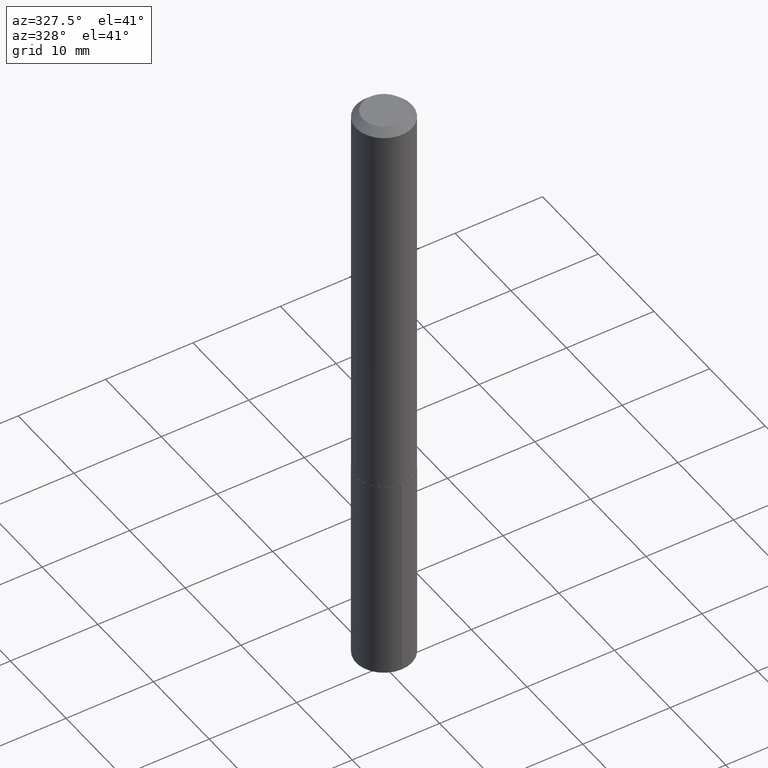
[diagram: clean part render]
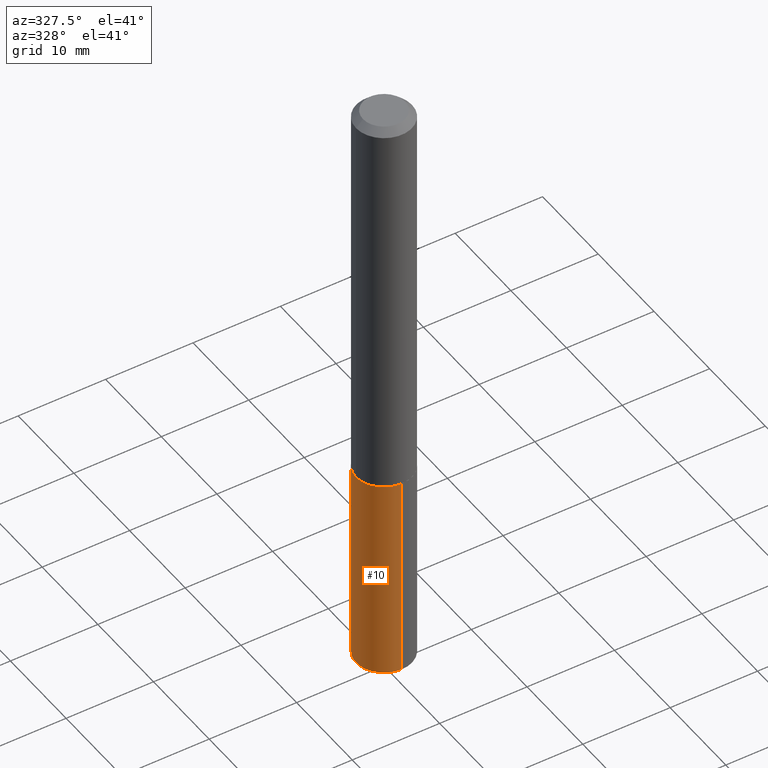
[diagram: same view with one face highlighted and labeled with its STEP entity id]
A machine part, auxiliary view. The second image highlights one B-rep face of the part: STEP entity #10.
In plain terms, the highlighted cylindrical surface (edge-blend (fillet) strip) has radius 3.2004 mm, axis along (-0, 0, 1).
Its self-contained STEP definition (entity closure, byte-faithful):
#10 = ADVANCED_FACE ( 'NONE', ( #75 ), #234, .T. ) ;
#20 = ORIENTED_EDGE ( 'NONE', *, *, #297, .F. ) ;
#22 = AXIS2_PLACEMENT_3D ( 'NONE', #199, #195, #235 ) ;
#57 = CARTESIAN_POINT ( 'NONE',  ( -8.798532973884258671E-16, -0.1260000000000062459, -1.787399999999999656 ) ) ;
#68 = CARTESIAN_POINT ( 'NONE',  ( -8.798532973884258671E-16, -0.1260000000000062459, -1.787399999999999656 ) ) ;
#75 = FACE_OUTER_BOUND ( 'NONE', #123, .T. ) ;
#88 = EDGE_CURVE ( 'NONE', #144, #357, #300, .T. ) ;
#97 = DIRECTION ( 'NONE',  ( -6.982962677686265922E-15, -1.000000000000000000, 4.336266656609941617E-15 ) ) ;
#107 = CARTESIAN_POINT ( 'NONE',  ( 8.952838470577930965E-16, 0.1259999999999937559, -1.787400000000000766 ) ) ;
#123 = EDGE_LOOP ( 'NONE', ( #20, #331, #306, #351 ) ) ;
#143 = VECTOR ( 'NONE', #327, 39.37007874015748143 ) ;
#144 = VERTEX_POINT ( 'NONE', #107 ) ;
#146 = DIRECTION ( 'NONE',  ( -2.445509556523788279E-29, 3.491422982038831617E-15, 1.000000000000000000 ) ) ;
#155 = EDGE_CURVE ( 'NONE', #213, #357, #173, .T. ) ;
#168 = VECTOR ( 'NONE', #146, 39.37007874015748143 ) ;
#173 = LINE ( 'NONE', #57, #143 ) ;
#177 = CIRCLE ( 'NONE', #222, 0.1260000000000000009 ) ;
#185 = LINE ( 'NONE', #241, #168 ) ;
#195 = DIRECTION ( 'NONE',  ( -2.445509556523788279E-29, 3.491422982038831222E-15, 1.000000000000000000 ) ) ;
#199 = CARTESIAN_POINT ( 'NONE',  ( 4.371030944175314115E-29, -6.240673745048238660E-15, -1.787400000000000100 ) ) ;
#202 = CARTESIAN_POINT ( 'NONE',  ( 4.371030944175314115E-29, -6.240673745048238660E-15, -1.787400000000000100 ) ) ;
#213 = VERTEX_POINT ( 'NONE', #384 ) ;
#222 = AXIS2_PLACEMENT_3D ( 'NONE', #245, #338, #97 ) ;
#234 = CYLINDRICAL_SURFACE ( 'NONE', #252, 0.1260000000000000009 ) ;
#235 = DIRECTION ( 'NONE',  ( -6.982962677686265922E-15, -1.000000000000000000, 4.336266656609941617E-15 ) ) ;
#241 = CARTESIAN_POINT ( 'NONE',  ( 8.952838470577698251E-16, 0.1259999999999937559, -1.787400000000000766 ) ) ;
#245 = CARTESIAN_POINT ( 'NONE',  ( 6.656942638513705697E-29, -9.504240883125278205E-15, -2.722138401753678494 ) ) ;
#252 = AXIS2_PLACEMENT_3D ( 'NONE', #202, #322, #380 ) ;
#277 = CARTESIAN_POINT ( 'NONE',  ( 8.952838470577932937E-16, 0.1259999999999905362, -2.722138401753679382 ) ) ;
#297 = EDGE_CURVE ( 'NONE', #368, #144, #185, .T. ) ;
#300 = CIRCLE ( 'NONE', #22, 0.1260000000000000009 ) ;
#306 = ORIENTED_EDGE ( 'NONE', *, *, #155, .T. ) ;
#322 = DIRECTION ( 'NONE',  ( -2.445509556523788279E-29, 3.491422982038831222E-15, 1.000000000000000000 ) ) ;
#327 = DIRECTION ( 'NONE',  ( -2.445509556523788279E-29, 3.491422982038831617E-15, 1.000000000000000000 ) ) ;
#328 = EDGE_CURVE ( 'NONE', #368, #213, #177, .T. ) ;
#331 = ORIENTED_EDGE ( 'NONE', *, *, #328, .T. ) ;
#338 = DIRECTION ( 'NONE',  ( -2.445509556523788279E-29, 3.491422982038831222E-15, 1.000000000000000000 ) ) ;
#351 = ORIENTED_EDGE ( 'NONE', *, *, #88, .F. ) ;
#357 = VERTEX_POINT ( 'NONE', #68 ) ;
#368 = VERTEX_POINT ( 'NONE', #277 ) ;
#380 = DIRECTION ( 'NONE',  ( -6.982962677686265922E-15, -1.000000000000000000, 4.336266656609941617E-15 ) ) ;
#384 = CARTESIAN_POINT ( 'NONE',  ( -8.798532973884031874E-16, -0.1260000000000095766, -2.722138401753678050 ) ) ;